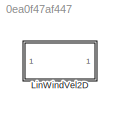
MODEL slx_0ea0f47af447
KIND library
CONFIG AbsTol = auto
CONFIG EnableMultiTasking = off
CONFIG FixedStep = auto
CONFIG MaxStep = auto
CONFIG MinStep = auto
CONFIG RelTol = 1e-3
CONFIG SampleTimeConstraint = Unconstrained
CONFIG Solver = VariableStepAuto
CONFIG SolverName = VariableStepAuto
CONFIG StartTime = 0.0
CONFIG StopTime = 10.0
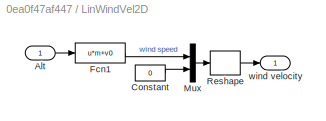
BLOCK [SubSystem] LinWindVel2D
  Ports = [1, 1]
  RequestExecContextInheritance = off
BLOCK [Inport] LinWindVel2D/Alt
BLOCK [Constant] LinWindVel2D/Constant
  Value = 0
BLOCK [Fcn] LinWindVel2D/Fcn1
  Expr = u*m+v0
BLOCK [Mux] LinWindVel2D/Mux
  DisplayOption = bar
  Inputs = 2
  Ports = [2, 1]
BLOCK [Reshape] LinWindVel2D/Reshape
  OutputDimensionality = Column vector (2-D)
  Ports = [1, 1]
BLOCK [Outport] LinWindVel2D/wind velocity
  VectorParamsAs1DForOutWhenUnconnected = off
LINE LinWindVel2D/Alt:1 -> LinWindVel2D/Fcn1:1
LINE LinWindVel2D/Constant:1 -> LinWindVel2D/Mux:2
LINE LinWindVel2D/Fcn1:1 -> LinWindVel2D/Mux:1
LINE LinWindVel2D/Mux:1 -> LinWindVel2D/Reshape:1
LINE LinWindVel2D/Reshape:1 -> LinWindVel2D/wind velocity:1
